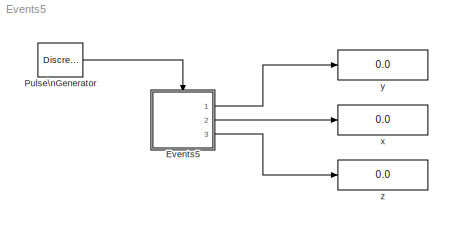
MODEL Events5
KIND model
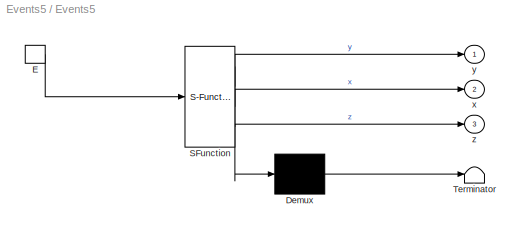
BLOCK [SubSystem] Events5
  MaskDescription = Stateflow diagram
  MaskDisplay = plot(sf('Private','sfblk','xIcon'),sf('Private','sfblk','yIcon'));text(0.5,0,sf('Private', 'sfblk', 'tIcon'),'HorizontalAl','Center','VerticalAl','Bottom');
  MaskIconFrame = off
  MaskIconOpaque = off
  MaskIconRotate = none
  MaskIconUnits = autoscale
  MaskSelfModifiable = on
  MaskType = Stateflow
  MinAlgLoopOccurrences = off
  Ports = [0, 3, 0, 1]
  RTWSystemCode = Auto
  TreatAsAtomicUnit = off
BLOCK [Demux] Events5/ Demux 
  Outputs = 1
  Ports = [1, 1]
BLOCK [S-Function] Events5/ SFunction 
  FunctionName = sf_sfun
  PortCounts = [1 4]
  Ports = [1, 4]
  Tag = Stateflow S-Function Events5 1
BLOCK [Terminator] Events5/ Terminator 
BLOCK [TriggerPort] Events5/E
  Ports = [0, 1]
  ShowOutputPort = on
  TriggerType = either
BLOCK [Outport] Events5/x
  IconDisplay = Port number
  Port = 2
BLOCK [Outport] Events5/y
  IconDisplay = Port number
BLOCK [Outport] Events5/z
  IconDisplay = Port number
  Port = 3
BLOCK [DiscretePulseGenerator] Pulse\nGenerator
  Ports = [0, 1]
BLOCK [Display] x
  Decimation = 1
  Ports = [1]
BLOCK [Display] y
  Decimation = 1
  Ports = [1]
BLOCK [Display] z
  Decimation = 1
  Ports = [1]
LINE Events5/ Demux :1 -> Events5/ Terminator :1
LINE Events5/ SFunction :1 -> Events5/ Demux :1
LINE Events5/ SFunction :2 -> Events5/y:1
LINE Events5/ SFunction :3 -> Events5/x:1
LINE Events5/ SFunction :4 -> Events5/z:1
LINE Events5/E:1 -> Events5/ SFunction :1
LINE Events5:1 -> y:1
LINE Events5:2 -> x:1
LINE Events5:3 -> z:1
LINE Pulse\nGenerator:1 -> Events5:trigger
CHART Events5 states=7 transitions=7
  STATE_LABEL 'A/\\nen: y++'
  STATE_LABEL 'B/\\nen: x++'
  STATE_LABEL 'C/\\nen: x++'
  STATE_LABEL 'Top1'
  STATE_LABEL 'Top2'
  STATE_LABEL 'D/\\nen: y++'
  STATE_LABEL 'E/\\nen: y++'
